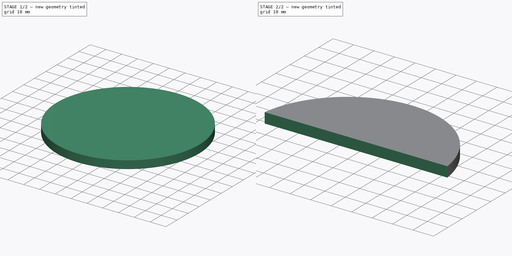
[diagram: build sequence overview — one tinted view per stage of 2, left to right]
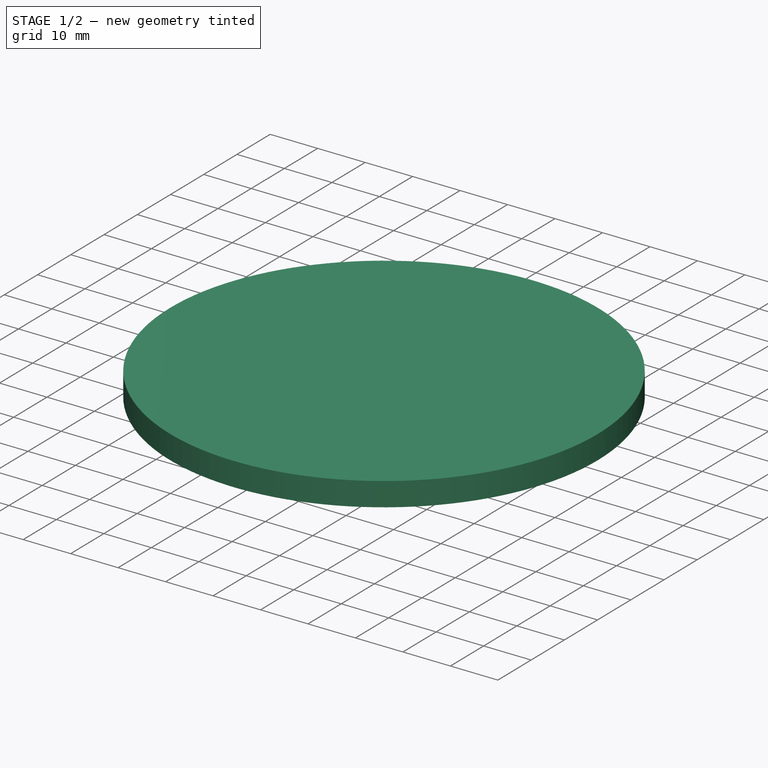
[diagram: stage 1 of 2 — iso view after this stage's code; geometry added in this stage tinted green]
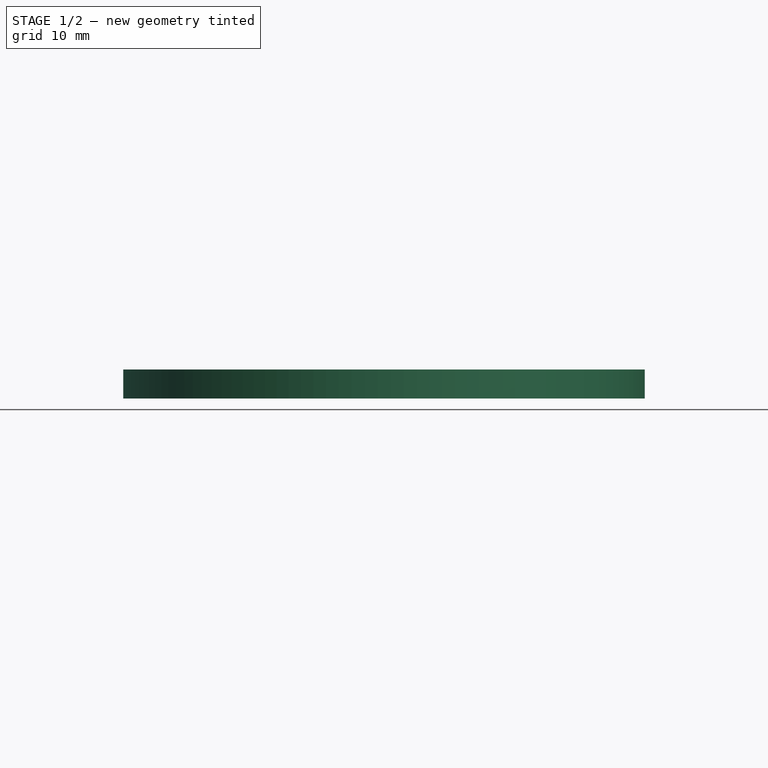
[diagram: stage 1 of 2 — front view after this stage's code; geometry added in this stage tinted green]
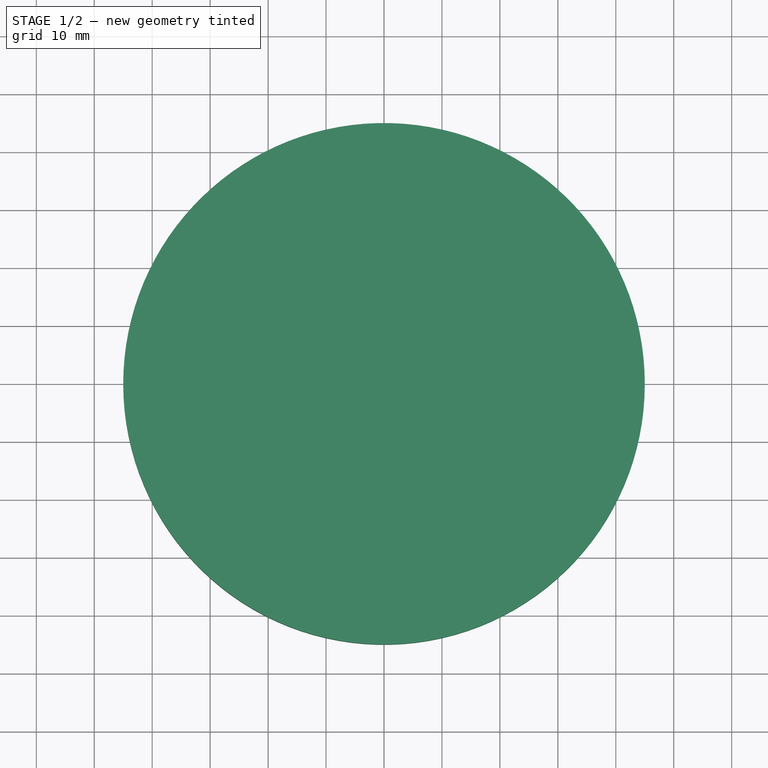
[diagram: stage 1 of 2 — top view after this stage's code; geometry added in this stage tinted green]
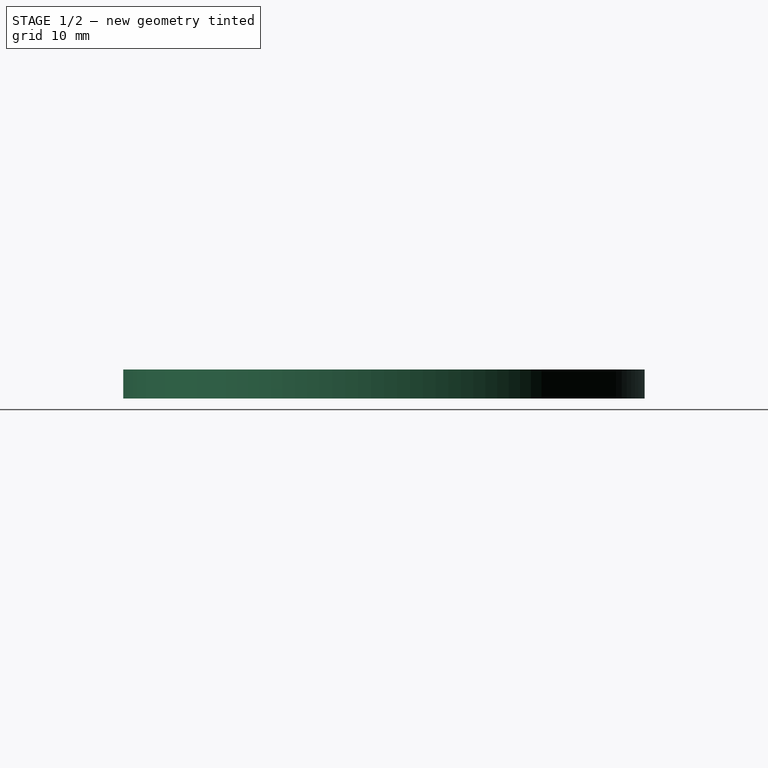
[diagram: stage 1 of 2 — right view after this stage's code; geometry added in this stage tinted green]
FCSTD DOCUMENT  (FreeCAD 1.0R39319 (Git))
Label: chapa_circle_90mm
License: All rights reserved
LicenseURL: https://en.wikipedia.org/wiki/All_rights_reserved
objects: Sketcher::SketchObject×6, PartDesign::Pocket×5, PartDesign::Pad×1, PartDesign::Body×1
note: 31 computed .brp shape members not serialized (recipe doc carries the construction recipe); baked Part::Feature solids carry a one-line shape summary decoded from their .brp

FEATURE [Sketcher::SketchObject] Sketch_1
  ArcFitTolerance = 1e-06
  AttachmentSupport = -> [XY_Plane]
  FullyConstrained = false
  MakeInternals = false
  MapMode = 5
  sketch-geometry (1):
    g0: Circle CenterX=0 CenterY=0 CenterZ=0 NormalX=0 NormalY=0 NormalZ=1 AngleXU=0 Radius=45
FEATURE [PartDesign::Pad] Pad_1
  Direction = (0,0,1)
  Length = 5
  Length2 = 10
  Profile = -> Sketch_1
  Refine = true
  Suppressed = false
  Type = 0
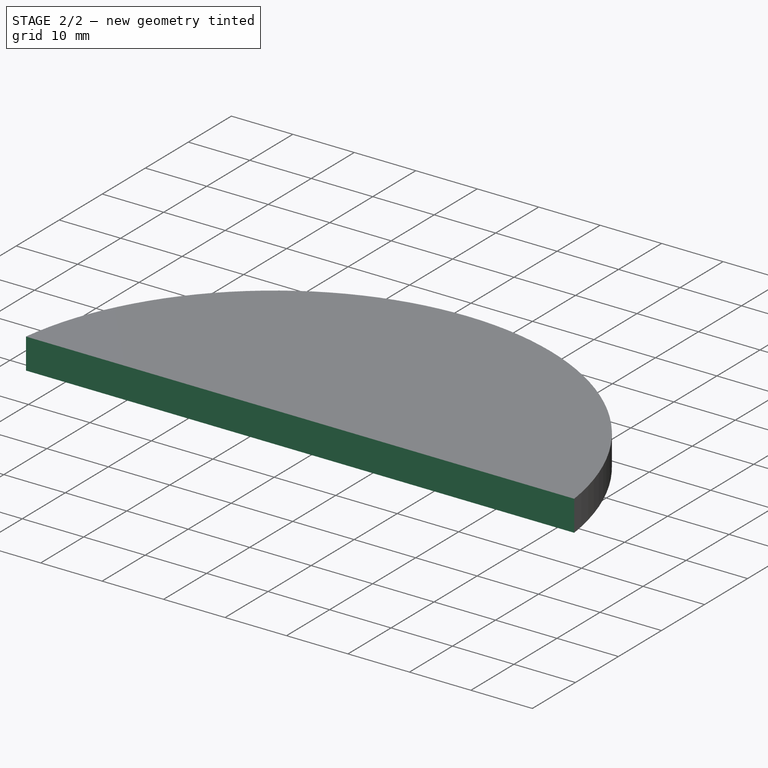
[diagram: stage 2 of 2 — iso view after this stage's code; geometry added in this stage tinted green]
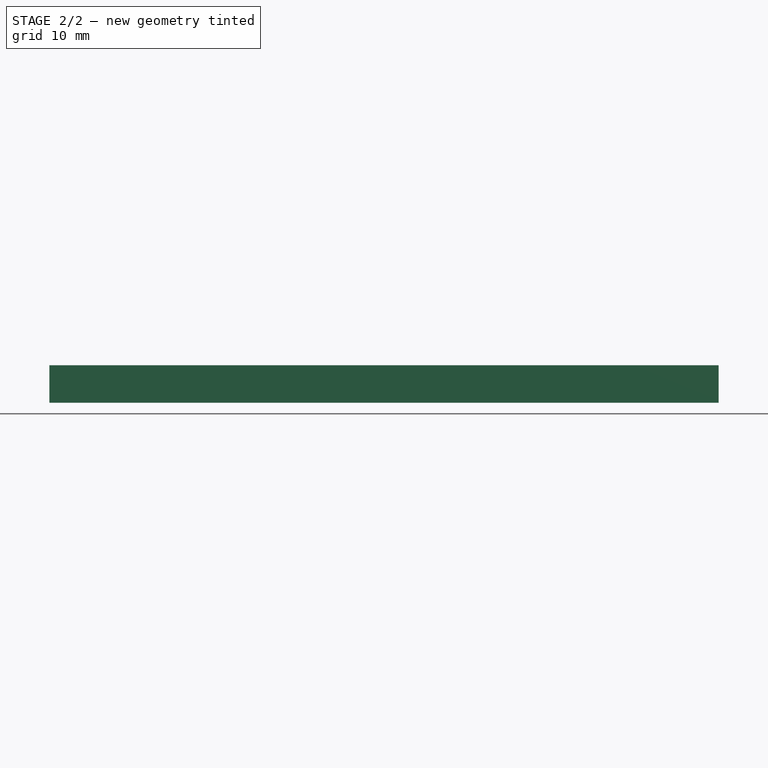
[diagram: stage 2 of 2 — front view after this stage's code; geometry added in this stage tinted green]
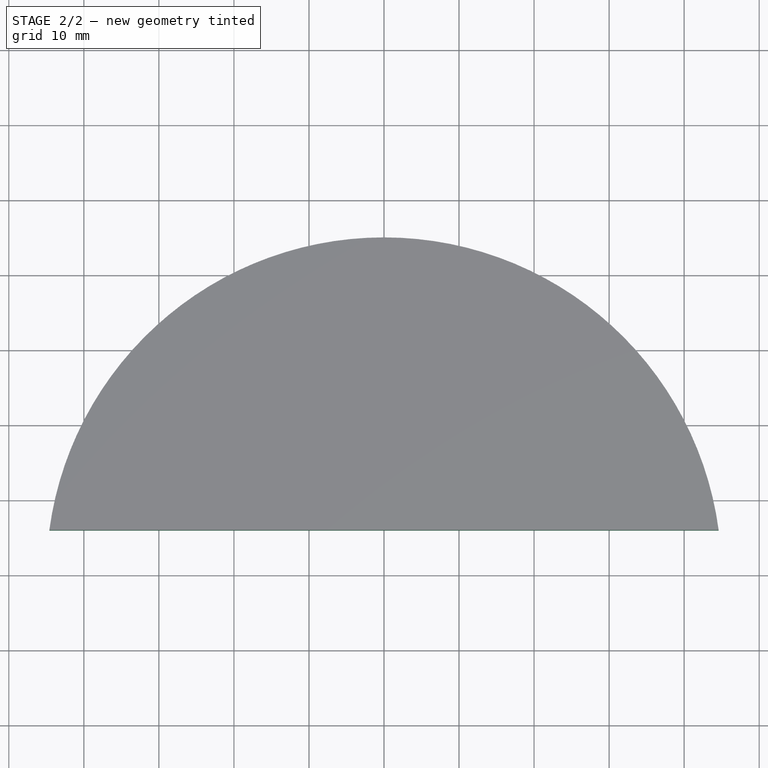
[diagram: stage 2 of 2 — top view after this stage's code; geometry added in this stage tinted green]
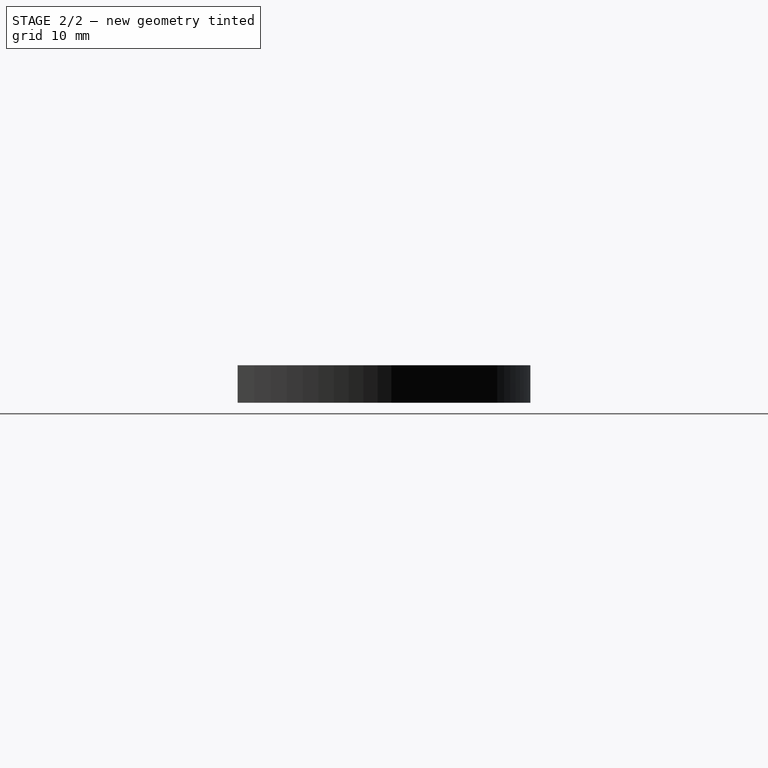
[diagram: stage 2 of 2 — right view after this stage's code; geometry added in this stage tinted green]
FEATURE [Sketcher::SketchObject] Sketch_2
  ArcFitTolerance = 1e-06
  AttachmentSupport = -> [Pad_1]
  FullyConstrained = false
  MakeInternals = false
  MapMode = 5
  Placement = pos=(0,0,5) rot=(0,0,1;0rad)
  sketch-geometry (4):
    g0: LineSegment StartX=-45 StartY=-6 StartZ=0 EndX=45 EndY=-6 EndZ=0
    g1: LineSegment StartX=45 StartY=-6 StartZ=0 EndX=45 EndY=6 EndZ=0
    g2: LineSegment StartX=45 StartY=6 StartZ=0 EndX=-45 EndY=6 EndZ=0
    g3: LineSegment StartX=-45 StartY=6 StartZ=0 EndX=-45 EndY=-6 EndZ=0
  constraints (4):
    c: Coincident(g0,g1)
    c: Coincident(g1,g2)
    c: Coincident(g2,g3)
    c: Coincident(g3,g0)
FEATURE [PartDesign::Pocket] Pocket_2
  BaseFeature = -> Pad_1
  Direction = (0,0,-1)
  Length = 5
  Length2 = 5
  Profile = -> Sketch_2
  Refine = true
  Suppressed = false
  Type = 1
FEATURE [Sketcher::SketchObject] Sketch_3
  ArcFitTolerance = 1e-06
  AttachmentSupport = -> [Pocket_2]
  FullyConstrained = false
  MakeInternals = false
  MapMode = 5
  Placement = pos=(0,6,0) rot=(1,0,0;1.5708rad)
  sketch-geometry (4):
    g0: LineSegment StartX=-45 StartY=-6 StartZ=0 EndX=45 EndY=-6 EndZ=0
    g1: LineSegment StartX=45 StartY=-6 StartZ=0 EndX=45 EndY=6 EndZ=0
    g2: LineSegment StartX=45 StartY=6 StartZ=0 EndX=-45 EndY=6 EndZ=0
    g3: LineSegment StartX=-45 StartY=6 StartZ=0 EndX=-45 EndY=-6 EndZ=0
  constraints (4):
    c: Coincident(g0,g1)
    c: Coincident(g1,g2)
    c: Coincident(g2,g3)
    c: Coincident(g3,g0)
FEATURE [PartDesign::Pocket] Pocket_3
  BaseFeature = -> Pocket_2
  Direction = (0,1,-2e-16)
  Length = 5
  Length2 = 5
  Profile = -> Sketch_3
  Refine = true
  Suppressed = false
  Type = 1
FEATURE [Sketcher::SketchObject] Sketch_4
  ArcFitTolerance = 1e-06
  AttachmentSupport = -> [Pocket_3]
  FullyConstrained = false
  MakeInternals = false
  MapMode = 5
  sketch-geometry (4):
    g0: LineSegment StartX=-45 StartY=-6 StartZ=0 EndX=45 EndY=-6 EndZ=0
    g1: LineSegment StartX=45 StartY=-6 StartZ=0 EndX=45 EndY=6 EndZ=0
    g2: LineSegment StartX=45 StartY=6 StartZ=0 EndX=-45 EndY=6 EndZ=0
    g3: LineSegment StartX=-45 StartY=6 StartZ=0 EndX=-45 EndY=-6 EndZ=0
  constraints (4):
    c: Coincident(g0,g1)
    c: Coincident(g1,g2)
    c: Coincident(g2,g3)
    c: Coincident(g3,g0)
FEATURE [PartDesign::Pocket] Pocket_4
  BaseFeature = -> Pocket_3
  Direction = (1,1,1)
  Length = 5
  Length2 = 5
  Profile = -> Sketch_4
  Refine = true
  Suppressed = false
  Type = 1
FEATURE [Sketcher::SketchObject] Sketch_5
  ArcFitTolerance = 1e-06
  AttachmentSupport = -> [Pocket_4]
  FullyConstrained = false
  MakeInternals = false
  MapMode = 5
  sketch-geometry (4):
    g0: LineSegment StartX=-45 StartY=-6 StartZ=0 EndX=45 EndY=-6 EndZ=0
    g1: LineSegment StartX=45 StartY=-6 StartZ=0 EndX=45 EndY=6 EndZ=0
    g2: LineSegment StartX=45 StartY=6 StartZ=0 EndX=-45 EndY=6 EndZ=0
    g3: LineSegment StartX=-45 StartY=6 StartZ=0 EndX=-45 EndY=-6 EndZ=0
  constraints (4):
    c: Coincident(g0,g1)
    c: Coincident(g1,g2)
    c: Coincident(g2,g3)
    c: Coincident(g3,g0)
FEATURE [PartDesign::Pocket] Pocket_5
  BaseFeature = -> Pocket_4
  Direction = (1,1,1)
  Length = 5
  Length2 = 5
  Profile = -> Sketch_5
  Refine = true
  Suppressed = false
  Type = 1
FEATURE [Sketcher::SketchObject] Sketch_6
  ArcFitTolerance = 1e-06
  AttachmentSupport = -> [Pocket_5]
  FullyConstrained = false
  MakeInternals = false
  MapMode = 5
  sketch-geometry (4):
    g0: LineSegment StartX=-45 StartY=-3 StartZ=0 EndX=45 EndY=-3 EndZ=0
    g1: LineSegment StartX=45 StartY=-3 StartZ=0 EndX=45 EndY=3 EndZ=0
    g2: LineSegment StartX=45 StartY=3 StartZ=0 EndX=-45 EndY=3 EndZ=0
    g3: LineSegment StartX=-45 StartY=3 StartZ=0 EndX=-45 EndY=-3 EndZ=0
  constraints (4):
    c: Coincident(g0,g1)
    c: Coincident(g1,g2)
    c: Coincident(g2,g3)
    c: Coincident(g3,g0)
FEATURE [PartDesign::Pocket] Pocket_6
  BaseFeature = -> Pocket_5
  Direction = (1,1,1)
  Length = 5
  Length2 = 5
  Profile = -> Sketch_6
  Refine = true
  Suppressed = false
  Type = 1
FEATURE [PartDesign::Body] Body
  AllowCompound = false
  Group = -> [Sketch_1,Pad_1,Sketch_2,Pocket_2,Sketch_3,Pocket_3,Sketch_4,Pocket_4,Sketch_5,Pocket_5,Sketch_6,Pocket_6]
  Origin = -> Origin
  Tip = -> Pocket_6
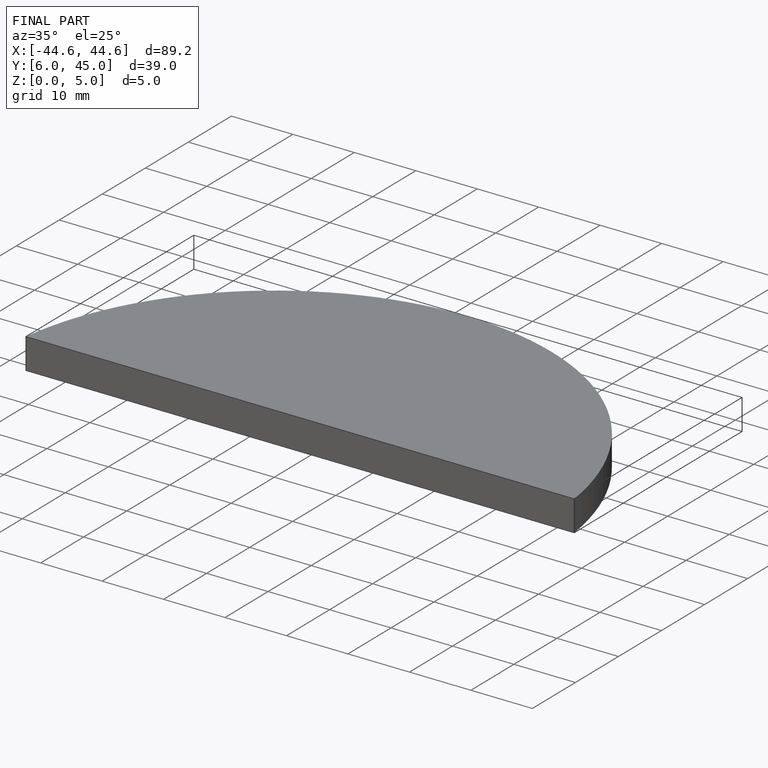
[diagram: finished part — iso view with bounding-box wireframe]
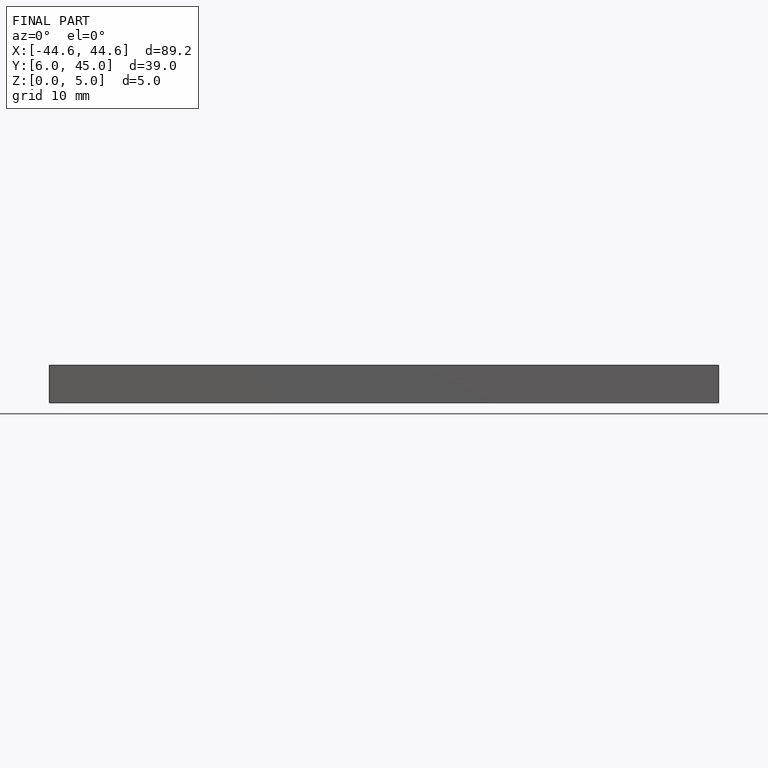
[diagram: finished part — front view with bounding-box wireframe]
